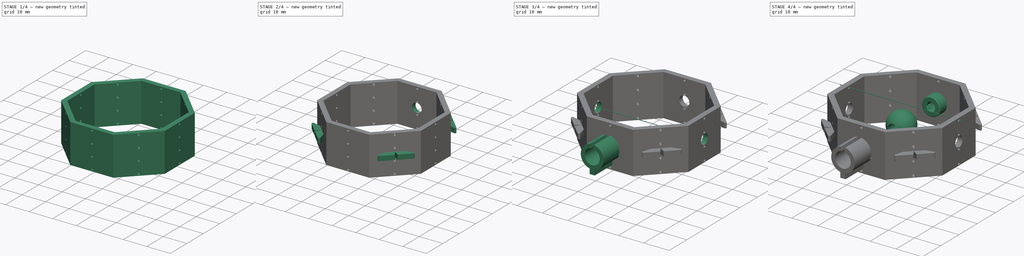
[diagram: build sequence overview — one tinted view per stage of 4, left to right]
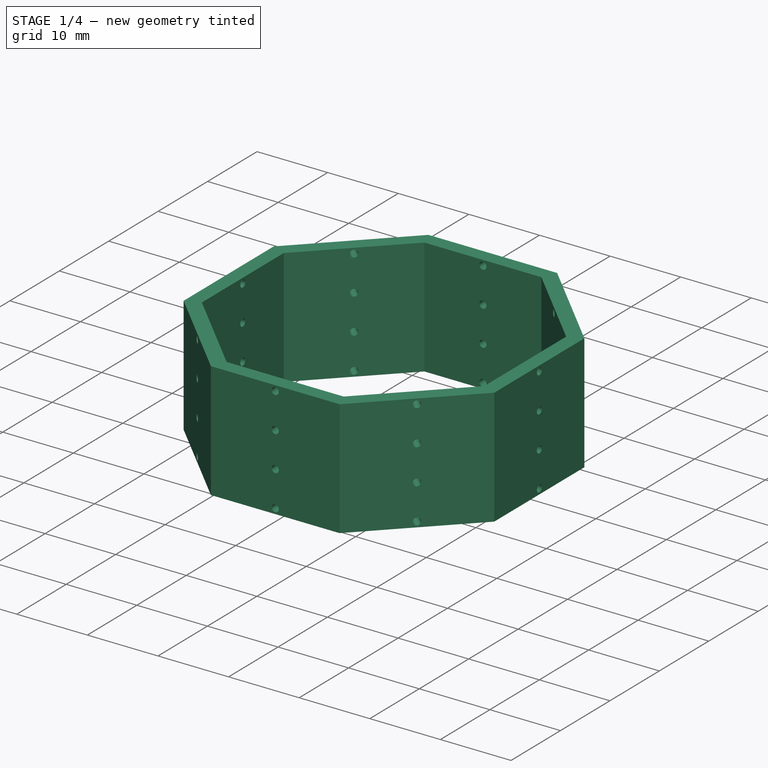
[diagram: stage 1 of 4 — iso view after this stage's code; geometry added in this stage tinted green]
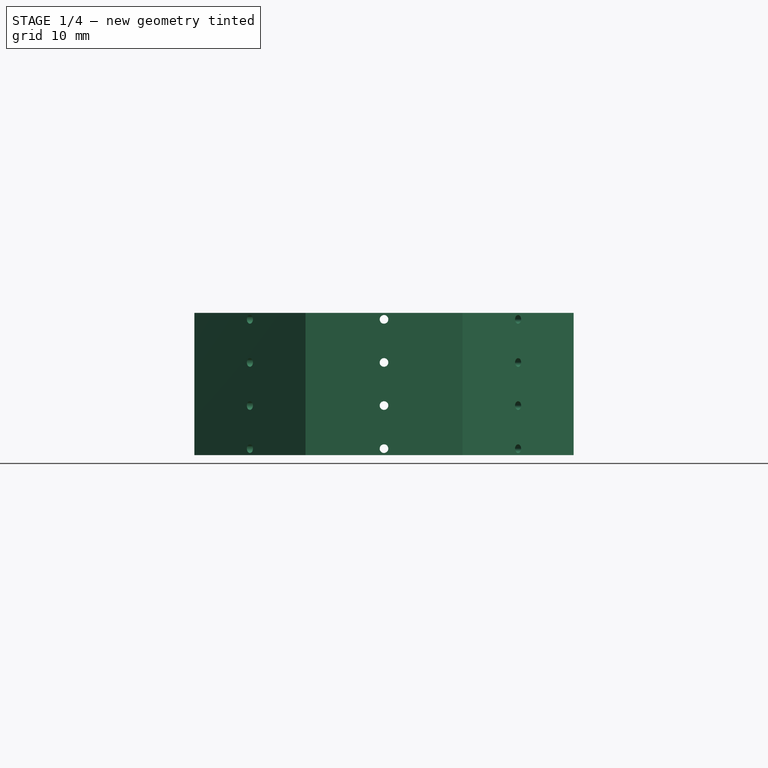
[diagram: stage 1 of 4 — front view after this stage's code; geometry added in this stage tinted green]
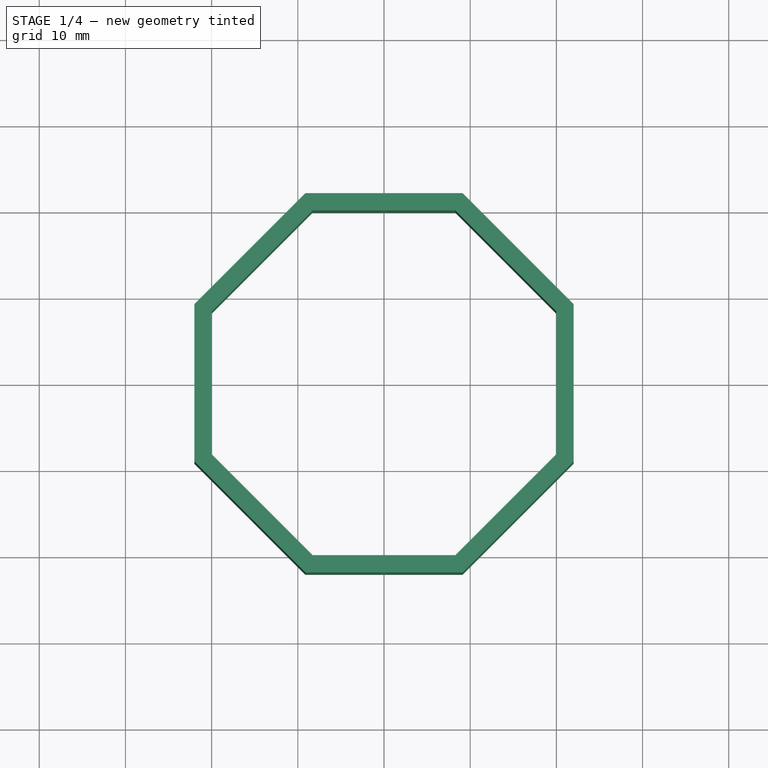
[diagram: stage 1 of 4 — top view after this stage's code; geometry added in this stage tinted green]
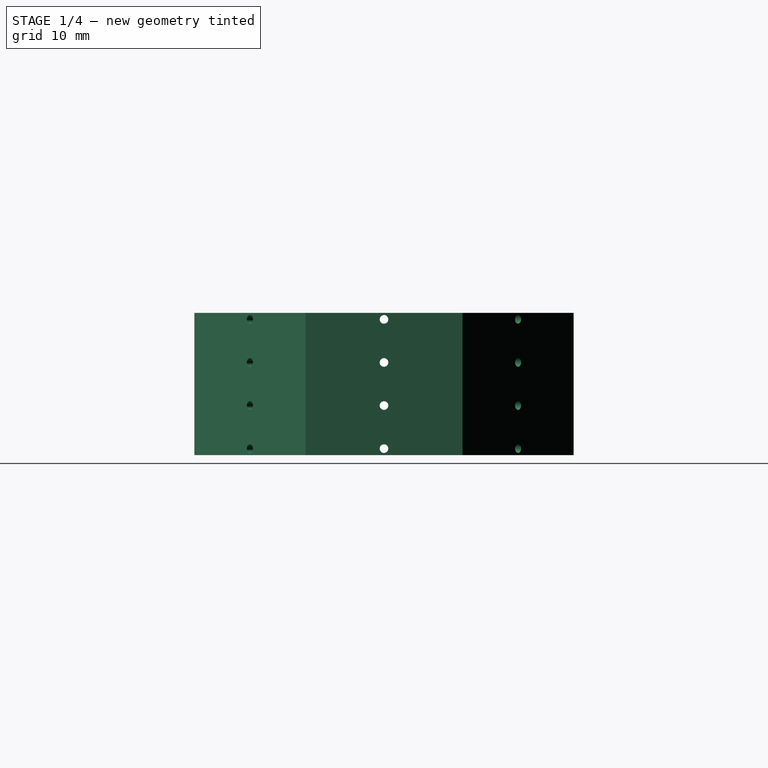
[diagram: stage 1 of 4 — right view after this stage's code; geometry added in this stage tinted green]
FCSTD DOCUMENT  (FreeCAD 0.19R24012 (Git))
Label: target_2axis
License: All rights reserved
LicenseURL: http://en.wikipedia.org/wiki/All_rights_reserved
objects: Sketcher::SketchObject×8, PartDesign::Pad×4, PartDesign::Body×4, PartDesign::Pocket×3, PartDesign::PolarPattern×3, Spreadsheet::Sheet×1, PartDesign::Revolution×1, Part::FeaturePython×1, PartDesign::FeatureBase×1
note: 33 computed .brp shape members not serialized (recipe doc carries the construction recipe); baked Part::Feature solids carry a one-line shape summary decoded from their .brp

FEATURE [Sketcher::SketchObject] Sketch
  FullyConstrained = true
  MapMode = 5
  Support = -> [XY_Plane]
  expr: Constraints[50] = <<p>>.mat_thick
  sketch-geometry (18):
    g0: LineSegment StartX=20 StartY=-8.28427 StartZ=0 EndX=20 EndY=8.28427 EndZ=0
    g1: LineSegment StartX=20 StartY=8.28427 StartZ=0 EndX=8.28427 EndY=20 EndZ=0
    g2: LineSegment StartX=8.28427 StartY=20 StartZ=0 EndX=-8.28427 EndY=20 EndZ=0
    g3: LineSegment StartX=-8.28427 StartY=20 StartZ=0 EndX=-20 EndY=8.28427 EndZ=0
    g4: LineSegment StartX=-20 StartY=8.28427 StartZ=0 EndX=-20 EndY=-8.28427 EndZ=0
    g5: LineSegment StartX=-20 StartY=-8.28427 StartZ=0 EndX=-8.28427 EndY=-20 EndZ=0
    g6: LineSegment StartX=-8.28427 StartY=-20 StartZ=0 EndX=8.28427 EndY=-20 EndZ=0
    g7: LineSegment StartX=8.28427 StartY=-20 StartZ=0 EndX=20 EndY=-8.28427 EndZ=0
    g8: Circle CenterX=0 CenterY=0 CenterZ=0 NormalX=0 NormalY=0 NormalZ=1 AngleXU=0 Radius=21.6478
    g9: LineSegment StartX=22 StartY=-9.1127 StartZ=0 EndX=22 EndY=9.1127 EndZ=0
    g10: LineSegment StartX=22 StartY=9.1127 StartZ=0 EndX=9.1127 EndY=22 EndZ=0
    g11: LineSegment StartX=9.1127 StartY=22 StartZ=0 EndX=-9.1127 EndY=22 EndZ=0
    g12: LineSegment StartX=-9.1127 StartY=22 StartZ=0 EndX=-22 EndY=9.1127 EndZ=0
    g13: LineSegment StartX=-22 StartY=9.1127 StartZ=0 EndX=-22 EndY=-9.1127 EndZ=0
    g14: LineSegment StartX=-22 StartY=-9.1127 StartZ=0 EndX=-9.1127 EndY=-22 EndZ=0
    g15: LineSegment StartX=-9.1127 StartY=-22 StartZ=0 EndX=9.1127 EndY=-22 EndZ=0
    g16: LineSegment StartX=9.1127 StartY=-22 StartZ=0 EndX=22 EndY=-9.1127 EndZ=0
    g17: Circle CenterX=0 CenterY=0 CenterZ=0 NormalX=0 NormalY=0 NormalZ=1 AngleXU=0 Radius=23.8126
  constraints (40):
    c: Coincident(g0,g1)
    c: Coincident(g1,g2)
    c: Coincident(g2,g3)
    c: Coincident(g3,g4)
    c: Coincident(g4,g5)
    c: Coincident(g5,g6)
    c: Coincident(g6,g7)
    c: Coincident(g7,g0)
    c: Equal(g0, g1-g7) x7
    c: PointOnObject(g0,g8)
    c: PointOnObject(g1,g8)
    c: PointOnObject(g2,g8)
    c: PointOnObject(g3,g8)
    c: PointOnObject(g4,g8)
    c: PointOnObject(g5,g8)
    c: PointOnObject(g6,g8)
    c: PointOnObject(g7,g8)
    c: Coincident(g8,g-1)
    c: Coincident(g9,g10)
    c: Coincident(g10,g11)
    c: Coincident(g11,g12)
    c: Coincident(g12,g13)
    c: Coincident(g13,g14)
    c: Coincident(g14,g15)
    c: Coincident(g15,g16)
    c: Coincident(g16,g9)
    c: Equal(g9, g10-g16) x7
    c: PointOnObject(g9,g17)
    c: PointOnObject(g10,g17)
    c: PointOnObject(g11,g17)
    c: PointOnObject(g12,g17)
    c: PointOnObject(g13,g17)
    c: PointOnObject(g14,g17)
    c: PointOnObject(g15,g17)
    c: PointOnObject(g16,g17)
    c: Coincident(g17,g-1)
    c: Vertical(g0)
    c: Vertical(g9)
    c: DistanceX(g0,g9) = 2
    c: DistanceX(g-1,g0) = 20
FEATURE [Spreadsheet::Sheet] Spreadsheet  label="p"
  cells = A2=Mat thickness; B2(mat_thick)=2
FEATURE [PartDesign::Pad] Pad
  Direction = (1,1,1)
  Length = 16.5
  Length2 = 100
  Midplane = true
  Profile = -> Sketch
  Type = 0
FEATURE [Sketcher::SketchObject] Sketch001
  FullyConstrained = true
  MapMode = 5
  Placement = pos=(0,0,0) rot=(1,0,0;1.5708rad)
  Support = -> [XZ_Plane]
  sketch-geometry (7):
    g0: Circle CenterX=0 CenterY=7.5 CenterZ=0 NormalX=0 NormalY=0 NormalZ=1 AngleXU=0 Radius=0.5
    g1: Circle CenterX=0 CenterY=2.5 CenterZ=0 NormalX=0 NormalY=0 NormalZ=1 AngleXU=0 Radius=0.5
    g2: Circle CenterX=0 CenterY=-2.5 CenterZ=0 NormalX=0 NormalY=0 NormalZ=1 AngleXU=0 Radius=0.5
    g3: Circle CenterX=0 CenterY=-7.5 CenterZ=0 NormalX=0 NormalY=0 NormalZ=1 AngleXU=0 Radius=0.5
    g4: LineSegment StartX=0 StartY=7.5 StartZ=0 EndX=0 EndY=2.5 EndZ=0
    g5: LineSegment StartX=0 StartY=2.5 StartZ=0 EndX=0 EndY=-2.5 EndZ=0
    g6: LineSegment StartX=0 StartY=-2.5 StartZ=0 EndX=0 EndY=-7.5 EndZ=0
  constraints (17):
    c: PointOnObject(g0,g-2)
    c: PointOnObject(g1,g-2)
    c: PointOnObject(g2,g-2)
    c: Equal(g0,g1)
    c: Equal(g1,g2)
    c: Equal(g2,g3)
    c: Diameter(g0) = 1
    c: Coincident(g4,g0)
    c: Coincident(g4,g1)
    c: Coincident(g5,g1)
    c: Coincident(g5,g2)
    c: Coincident(g6,g2)
    c: Coincident(g6,g3)
    c: Equal(g4,g5)
    c: Equal(g5,g6)
    c: DistanceY(g3,g0) = 15
    c: Symmetric(g0,g3,g-1)
FEATURE [PartDesign::Pocket] Pocket
  BaseFeature = -> Pad
  Length = 50
  Length2 = 100
  Midplane = true
  Profile = -> Sketch001
  Type = 0
FEATURE [PartDesign::PolarPattern] PolarPattern
  Angle = 360
  Axis = -> Sketch001 [V_Axis]
  BaseFeature = -> Pocket
  Occurrences = 8
  Originals = -> [Pocket]
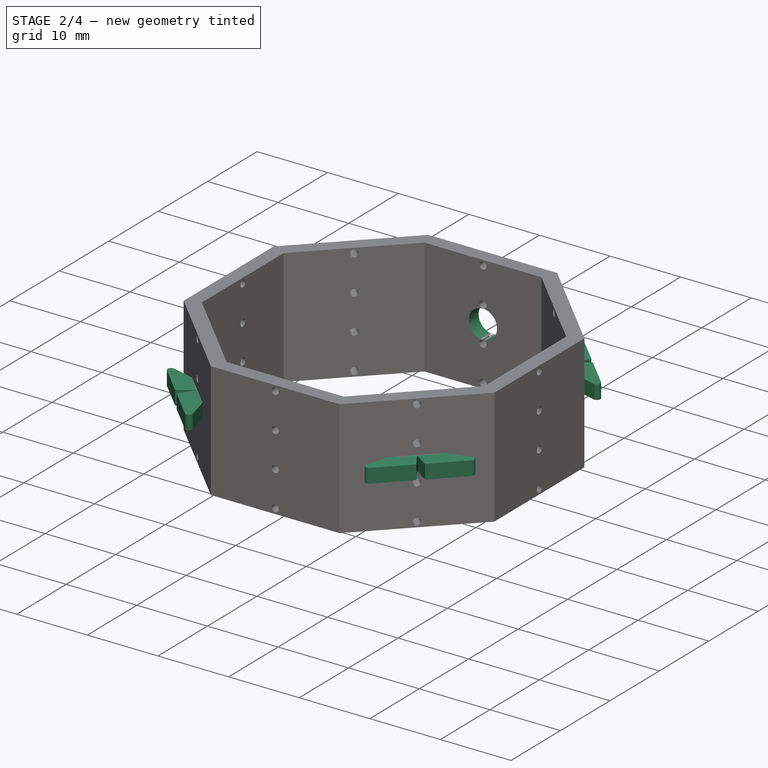
[diagram: stage 2 of 4 — iso view after this stage's code; geometry added in this stage tinted green]
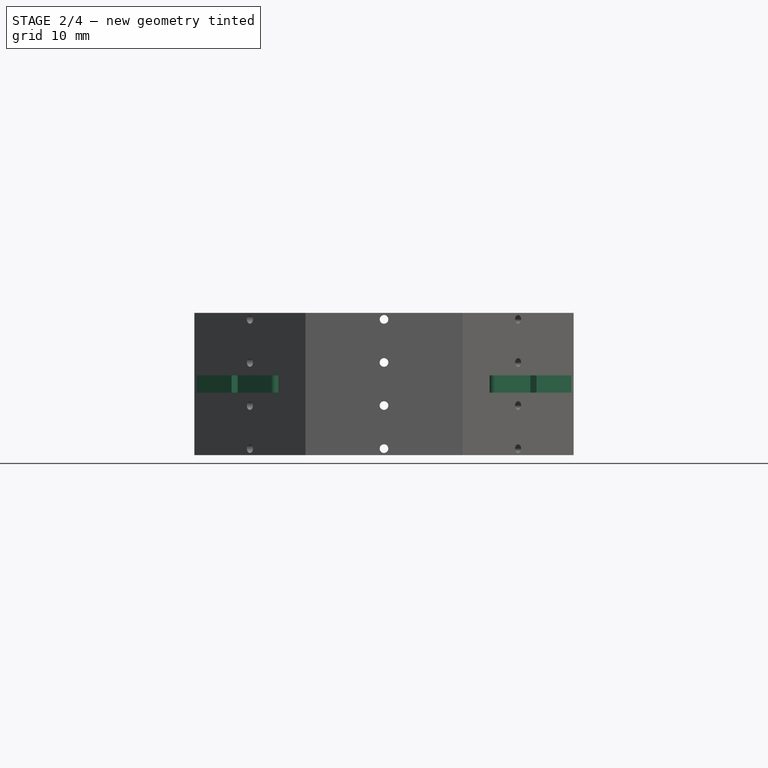
[diagram: stage 2 of 4 — front view after this stage's code; geometry added in this stage tinted green]
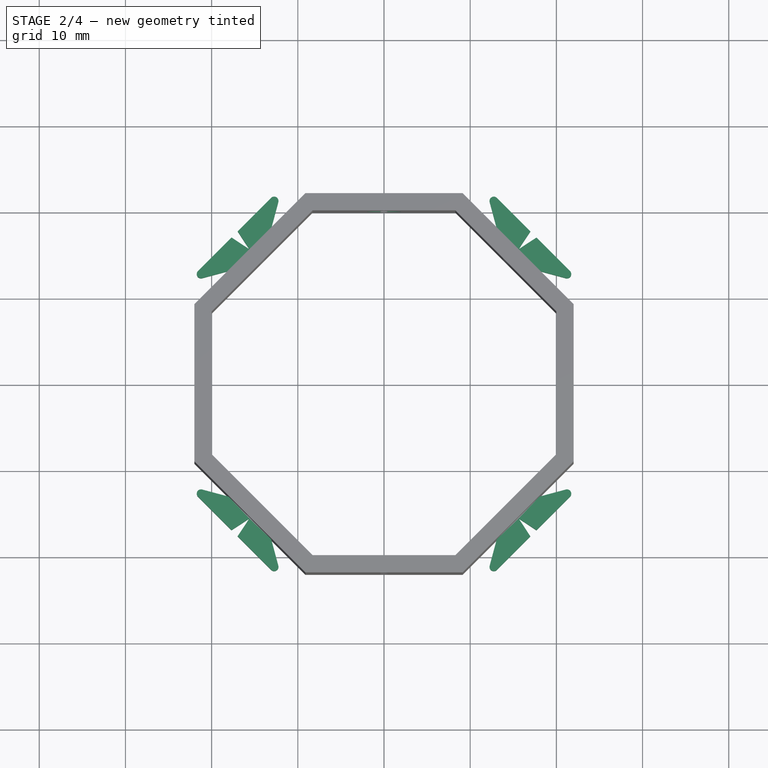
[diagram: stage 2 of 4 — top view after this stage's code; geometry added in this stage tinted green]
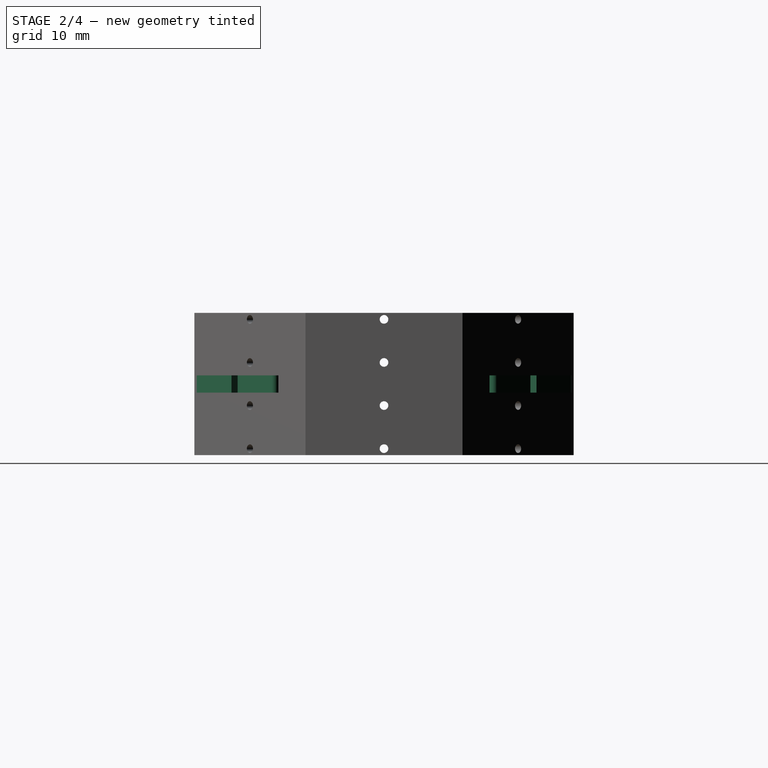
[diagram: stage 2 of 4 — right view after this stage's code; geometry added in this stage tinted green]
FEATURE [Sketcher::SketchObject] Sketch002
  ExternalGeometry = -> [PolarPattern]
  FullyConstrained = false
  MapMode = 5
  Support = -> [XY_Plane]
  sketch-geometry (10):
    g0: LineSegment StartX=-21.5814 StartY=13.0961 StartZ=0 EndX=-17.6923 EndY=16.9852 EndZ=0
    g1: LineSegment StartX=-16.9852 StartY=17.6923 StartZ=0 EndX=-13.0961 EndY=21.5814 EndZ=0
    g2: LineSegment StartX=-18.0312 StartY=13.0815 StartZ=0 EndX=-21.0984 EndY=12.2596 EndZ=0
    g3: LineSegment StartX=-17.6923 StartY=16.9852 StartZ=0 EndX=-15.6271 EndY=15.6271 EndZ=0
    g4: LineSegment StartX=-15.6271 StartY=15.6271 StartZ=0 EndX=-16.9852 EndY=17.6923 EndZ=0
    g5: LineSegment StartX=-15.5563 StartY=15.5563 StartZ=0 EndX=-23.3861 EndY=23.3861 EndZ=0
    g6: ArcOfCircle CenterX=-21.2279 CenterY=12.7426 CenterZ=0 NormalX=0 NormalY=0 NormalZ=1 AngleXU=0 Radius=0.5 StartAngle=2.35619 EndAngle=4.97419
    g7: ArcOfCircle CenterX=-12.7426 CenterY=21.2279 CenterZ=0 NormalX=0 NormalY=0 NormalZ=1 AngleXU=0 Radius=0.5 StartAngle=6.02139 EndAngle=8.63938
    g8: LineSegment StartX=-12.2596 StartY=21.0984 StartZ=0 EndX=-13.0815 EndY=18.0312 EndZ=0
    g9: LineSegment StartX=-13.0815 StartY=18.0312 StartZ=0 EndX=-18.0312 EndY=13.0815 EndZ=0
  constraints (24):
    c: Coincident(g3,g0)
    c: Coincident(g4,g1)
    c: Symmetric(g0,g1,g5)
    c: Parallel(g0,g1)
    c: Distance(g0,g1) = 1
    c: Coincident(g3,g4)
    c: PointOnObject(g3,g5)
    c: Distance(g3,g5) = 0.1
    c: Symmetric(g6,g7,g5)
    c: Tangent(g0,g6) = 1.5708
    c: Tangent(g2,g6) = 1.5708
    c: Tangent(g1,g7) = 1.5708
    c: Distance(g6,g7) = 12
    c: Diameter(g6) = 1
    c: Coincident(g9,g8)
    c: Coincident(g9,g2)
    c: PointOnObject(g5,g9)
    c: Tangent(g8,g7) = 1.5708
    c: Symmetric(g2,g8,g5)
    c: Equal(g6,g7)
    c: PointOnObject(g2,g-5)
    c: Symmetric(g-5,g-5,g5)
    c: Angle(g8,g-5) = 2.61799
    c: Distance(g2,g8) = 7
FEATURE [PartDesign::Pad] Pad001
  BaseFeature = -> PolarPattern
  Direction = (1,1,1)
  Length = 2
  Length2 = 100
  Midplane = true
  Profile = -> Sketch002
  Type = 0
FEATURE [PartDesign::PolarPattern] PolarPattern001
  Angle = 360
  Axis = -> Sketch002 [N_Axis]
  BaseFeature = -> Pad001
  Occurrences = 4
  Originals = -> [Pad001]
FEATURE [Sketcher::SketchObject] Sketch003
  FullyConstrained = true
  MapMode = 5
  Placement = pos=(0,0,0) rot=(1,0,0;1.5708rad)
  Support = -> [XZ_Plane]
  sketch-geometry (1):
    g0: Circle CenterX=0 CenterY=0 CenterZ=0 NormalX=0 NormalY=0 NormalZ=1 AngleXU=0 Radius=2
  constraints (2):
    c: Coincident(g0,g-1)
    c: Diameter(g0) = 4
FEATURE [PartDesign::Pocket] Pocket001
  BaseFeature = -> PolarPattern001
  Length = 30
  Length2 = 100
  Profile = -> Sketch003
  Type = 0
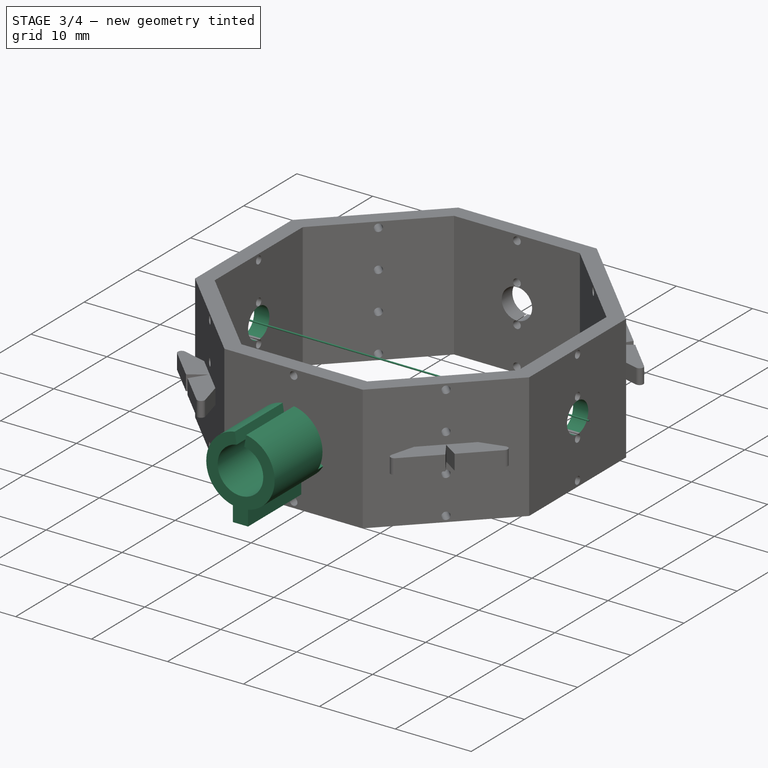
[diagram: stage 3 of 4 — iso view after this stage's code; geometry added in this stage tinted green]
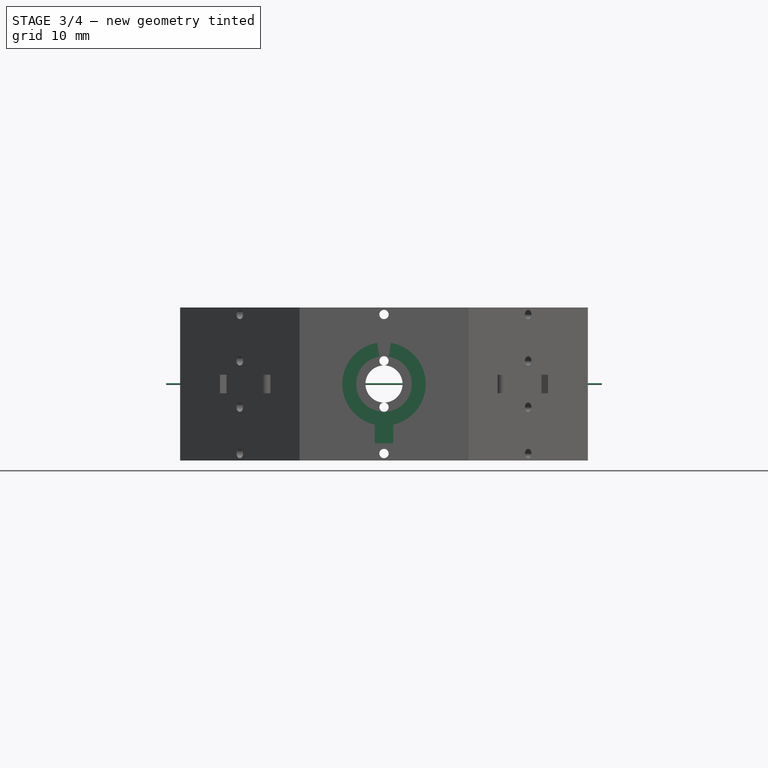
[diagram: stage 3 of 4 — front view after this stage's code; geometry added in this stage tinted green]
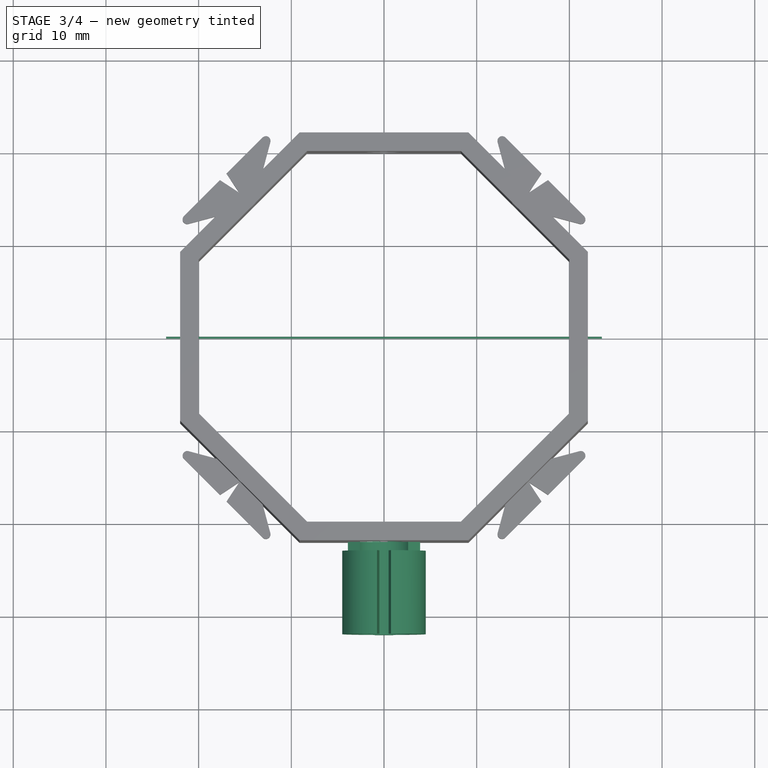
[diagram: stage 3 of 4 — top view after this stage's code; geometry added in this stage tinted green]
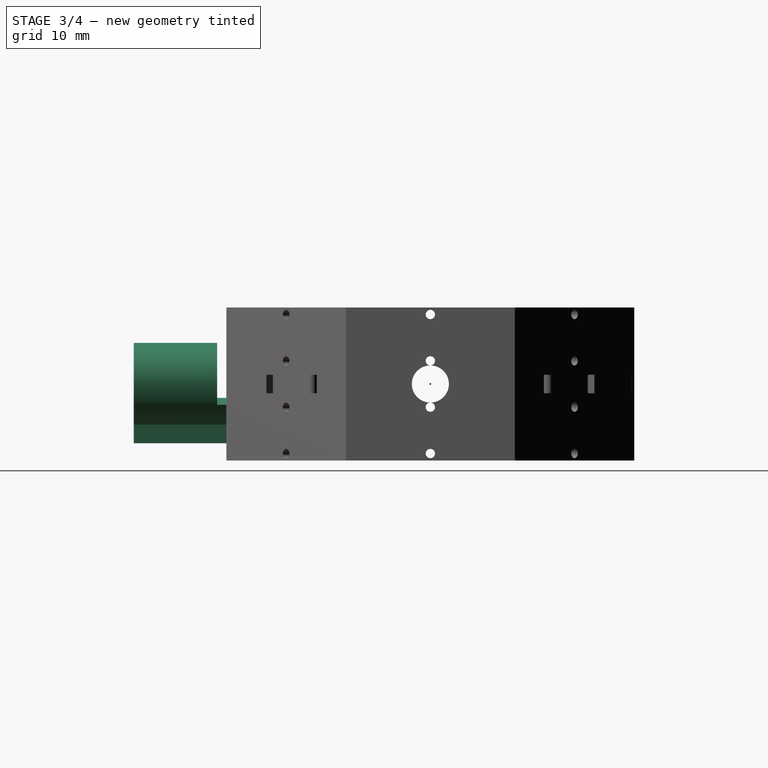
[diagram: stage 3 of 4 — right view after this stage's code; geometry added in this stage tinted green]
FEATURE [PartDesign::PolarPattern] PolarPattern002
  Angle = 360
  Axis = -> Z_Axis
  BaseFeature = -> Pocket001
  Occurrences = 4
  Originals = -> [Pocket001]
FEATURE [Sketcher::SketchObject] Sketch005
  FullyConstrained = true
  MapMode = 5
  Placement = pos=(0,0,0) rot=(0.57735,0.57735,0.57735;2.0944rad)
  Support = -> [YZ_Plane002]
  sketch-geometry (1):
    g0: Circle CenterX=0 CenterY=0 CenterZ=0 NormalX=0 NormalY=0 NormalZ=1 AngleXU=0 Radius=0.1
  constraints (2):
    c: Coincident(g0,g-1)
    c: Diameter(g0) = 0.2
FEATURE [PartDesign::Pad] Pad002
  Direction = (1,1,1)
  Length = 47
  Length2 = 100
  Midplane = true
  Placement = pos=(0,0,0) rot=(0.57735,0.57735,0.57735;2.0944rad)
  Profile = -> Sketch005
  Type = 0
FEATURE [PartDesign::Body] Body003  label="bd_thread2"
  Group = -> [Clone]
  Origin = -> Origin003
  Placement = pos=(0,0,-15) rot=(0,0,1;1.5708rad)
  Tip = -> Clone
FEATURE [Sketcher::SketchObject] Sketch006
  FullyConstrained = true
  MapMode = 5
  Placement = pos=(-4.3e-15,-22,0) rot=(1,0,0;1.5708rad)
  Support = -> [PolarPattern002]
  expr: Constraints[10] = <<p>>.mat_thick
  expr: Constraints[9] = <<p>>.mat_thick
  sketch-geometry (8):
    g0: ArcOfCircle CenterX=0 CenterY=0 CenterZ=0 NormalX=0 NormalY=0 NormalZ=1 AngleXU=0 Radius=3 StartAngle=1.73824 EndAngle=7.68653
    g1: ArcOfCircle CenterX=0 CenterY=0 CenterZ=0 NormalX=0 NormalY=0 NormalZ=1 AngleXU=0 Radius=4.5 StartAngle=4.93648 EndAngle=7.68653
    g2: LineSegment StartX=-1 StartY=-4.38748 StartZ=0 EndX=-1 EndY=-6.38748 EndZ=0
    g3: LineSegment StartX=-1 StartY=-6.38748 StartZ=0 EndX=1 EndY=-6.38748 EndZ=0
    g4: LineSegment StartX=1 StartY=-6.38748 StartZ=0 EndX=1 EndY=-4.38748 EndZ=0
    g5: LineSegment StartX=-0.5 StartY=2.95804 StartZ=0 EndX=-0.75 EndY=4.43706 EndZ=0
    g6: LineSegment StartX=0.5 StartY=2.95804 StartZ=0 EndX=0.75 EndY=4.43706 EndZ=0
    g7: ArcOfCircle CenterX=0 CenterY=0 CenterZ=0 NormalX=0 NormalY=0 NormalZ=1 AngleXU=0 Radius=4.5 StartAngle=1.73824 EndAngle=4.4883
  constraints (23):
    c: Coincident(g0,g-1)
    c: Coincident(g1,g0)
    c: Diameter(g0) = 6
    c: Diameter(g1) = 9
    c: Vertical(g2)
    c: Coincident(g3,g2)
    c: Coincident(g4,g3)
    c: Vertical(g4)
    c: Symmetric(g2,g3,g-2)
    c: DistanceX(g3,g3) = 2
    c: DistanceY(g4,g4) = 2
    c: Coincident(g1,g4)
    c: Coincident(g7,g2)
    c: PointOnObject(g0,g5)
    c: PointOnObject(g0,g6)
    c: Symmetric(g5,g6,g-2)
    c: DistanceX(g5,g6) = 1
    c: Coincident(g0,g5)
    c: Coincident(g0,g6)
    c: Equal(g1,g7)
    c: PointOnObject(g1,g6)
    c: Coincident(g7,g5)
    c: Coincident(g1,g7)
FEATURE [PartDesign::Pad] Pad003
  BaseFeature = -> PolarPattern002
  Direction = (1,1,1)
  Length = 10
  Length2 = 100
  Profile = -> Sketch006
  Type = 0
FEATURE [Sketcher::SketchObject] Sketch007
  FullyConstrained = true
  MapMode = 5
  Placement = pos=(-4.3e-15,-22,0) rot=(1,0,0;1.5708rad)
  Support = -> [Pad003]
  sketch-geometry (3):
    g0: ArcOfCircle CenterX=0 CenterY=0 CenterZ=0 NormalX=0 NormalY=0 NormalZ=1 AngleXU=0 Radius=4.55 StartAngle=5.75959 EndAngle=9.94838
    g1: LineSegment StartX=-3.94042 StartY=-2.275 StartZ=0 EndX=0 EndY=0 EndZ=0
    g2: LineSegment StartX=0 StartY=0 StartZ=0 EndX=3.94042 EndY=-2.275 EndZ=0
  constraints (8):
    c: Coincident(g0,g-1)
    c: Coincident(g1,g0)
    c: Coincident(g1,g0)
    c: Coincident(g2,g0)
    c: Coincident(g2,g0)
    c: Symmetric(g0,g0,g-2)
    c: Angle(g1,g2) = 2.0944
    c: Diameter(g0) = 9.1
FEATURE [PartDesign::Pocket] Pocket002
  BaseFeature = -> Pad003
  Length = 1
  Length2 = 100
  Profile = -> Sketch007
  Reversed = true
  Type = 0
FEATURE [PartDesign::Body] Body  label="bd_frame"
  Group = -> [Sketch,Pad,Sketch001,Pocket,PolarPattern,Sketch002,Pad001,PolarPattern001,Sketch003,Pocket001,PolarPattern002,Sketch006,Pad003,Sketch007,Pocket002]
  Origin = -> Origin
  Tip = -> Pocket002
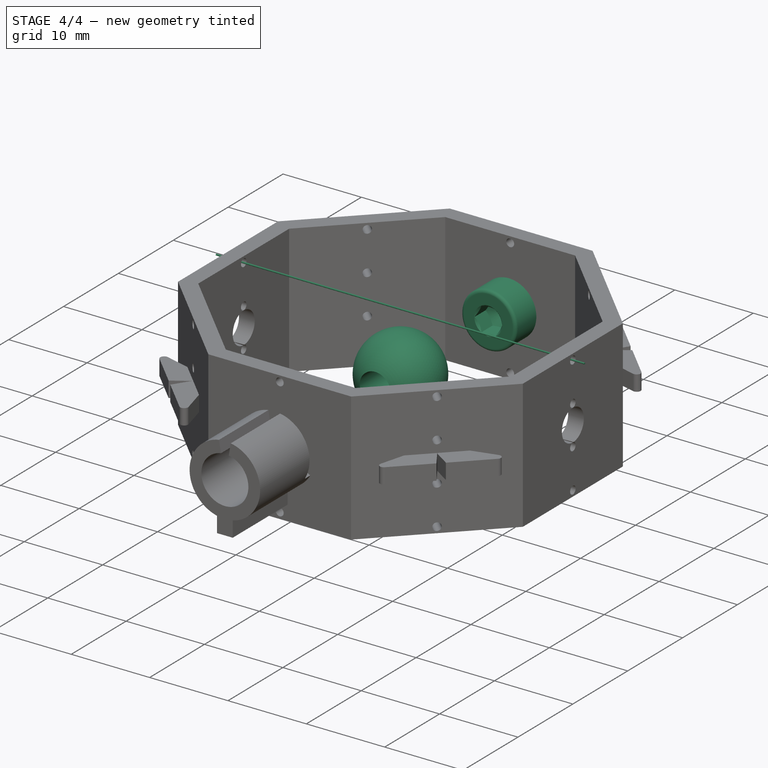
[diagram: stage 4 of 4 — iso view after this stage's code; geometry added in this stage tinted green]
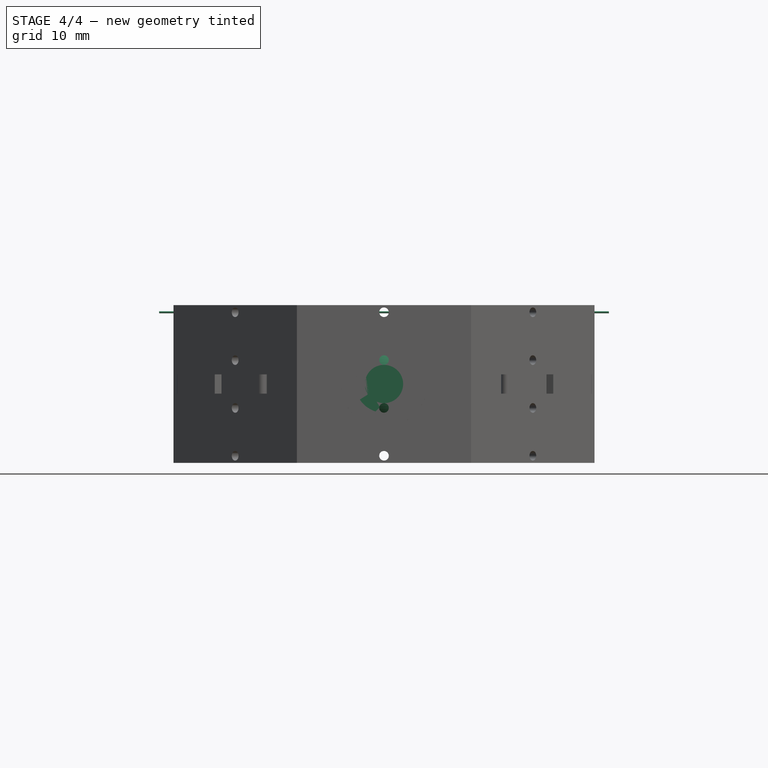
[diagram: stage 4 of 4 — front view after this stage's code; geometry added in this stage tinted green]
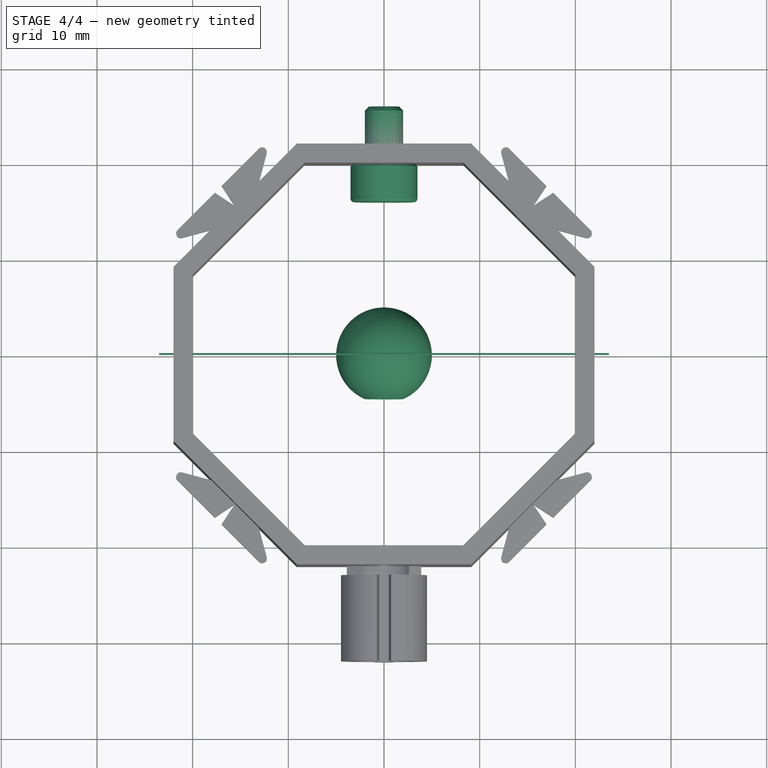
[diagram: stage 4 of 4 — top view after this stage's code; geometry added in this stage tinted green]
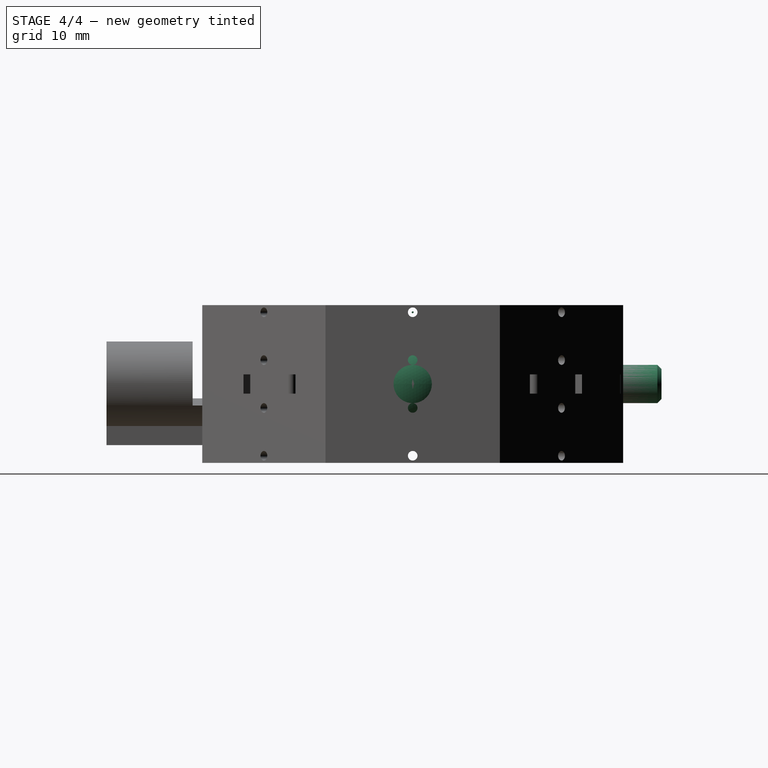
[diagram: stage 4 of 4 — right view after this stage's code; geometry added in this stage tinted green]
FEATURE [Sketcher::SketchObject] Sketch004
  FullyConstrained = true
  MapMode = 5
  Support = -> [XY_Plane001]
  sketch-geometry (4):
    g0: ArcOfCircle CenterX=0 CenterY=0 CenterZ=0 NormalX=0 NormalY=0 NormalZ=1 AngleXU=0 Radius=5 StartAngle=5.12391 EndAngle=7.85398
    g1: LineSegment StartX=0 StartY=0 StartZ=0 EndX=2 EndY=0 EndZ=0
    g2: LineSegment StartX=2 StartY=0 StartZ=0 EndX=2 EndY=-4.58258 EndZ=0
    g3: LineSegment StartX=1.5e-15 StartY=5 StartZ=0 EndX=0 EndY=0 EndZ=0
  constraints (11):
    c: Coincident(g0,g-1)
    c: PointOnObject(g0,g-2)
    c: Diameter(g0) = 10
    c: Coincident(g1,g0)
    c: PointOnObject(g1,g-1)
    c: Coincident(g2,g1)
    c: Vertical(g2)
    c: DistanceX(g1,g1) = 2
    c: Coincident(g0,g2)
    c: Coincident(g3,g0)
    c: Coincident(g3,g0)
FEATURE [PartDesign::Revolution] Revolution
  Angle = 360
  Axis = (0,1,0)
  Base = (0,0,0)
  Profile = -> Sketch004
  ReferenceAxis = -> Sketch004 [V_Axis]
  Reversed = true
FEATURE [PartDesign::Body] Body001  label="bd_ball"
  Group = -> [Sketch004,Revolution]
  Origin = -> Origin001
  Placement = pos=(0,26.6,0) rot=(0,0,1;0rad)
  Tip = -> Revolution
FEATURE [Part::FeaturePython] Screw  label="M4x6-Screw"  # Fasteners workbench fastener (typed FeaturePython)
  Placement = pos=(0,20,4.4e-15) rot=(1,0,0;1.5708rad)
  diameter = 5
  invert = false
  length = 0
  matchOuter = false
  offset = 0
  thread = false
  type = 15
FEATURE [PartDesign::Body] Body002  label="bd_thread"
  Group = -> [Sketch005,Pad002]
  Origin = -> Origin002
  Placement = pos=(0,0,7.5) rot=(0,0,1;0rad)
  Tip = -> Pad002
FEATURE [PartDesign::FeatureBase] Clone
  BaseFeature = -> Body002
  Placement = pos=(0,0,7.5) rot=(0,0,1;0rad)
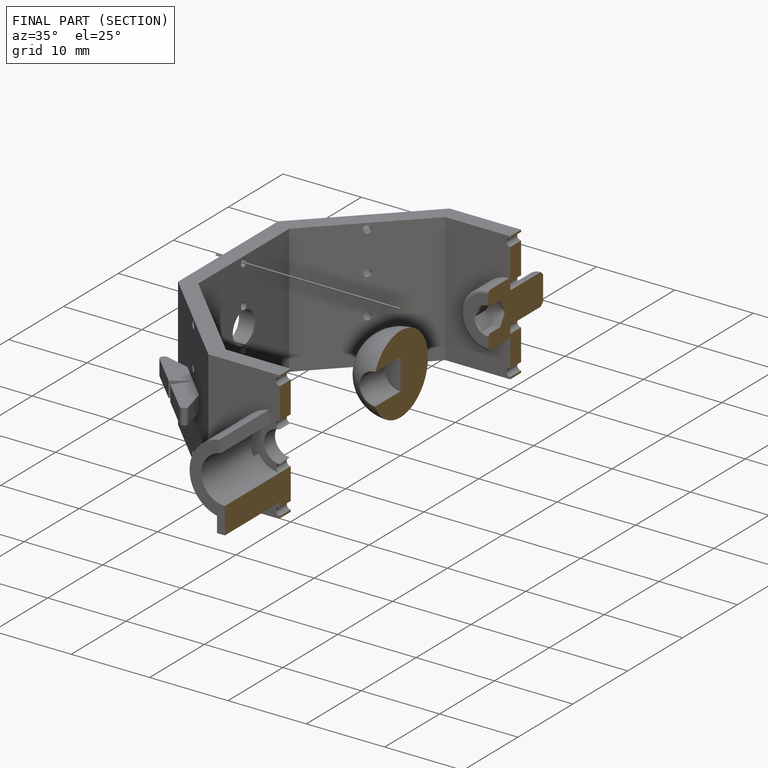
[diagram: finished part — half-section view (interior)]
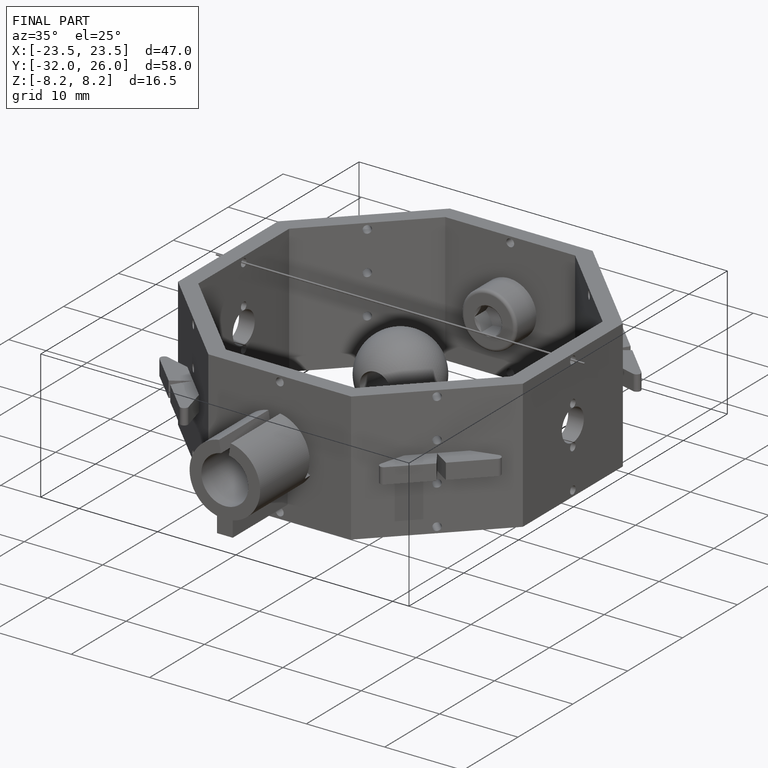
[diagram: finished part — iso view with bounding-box wireframe]
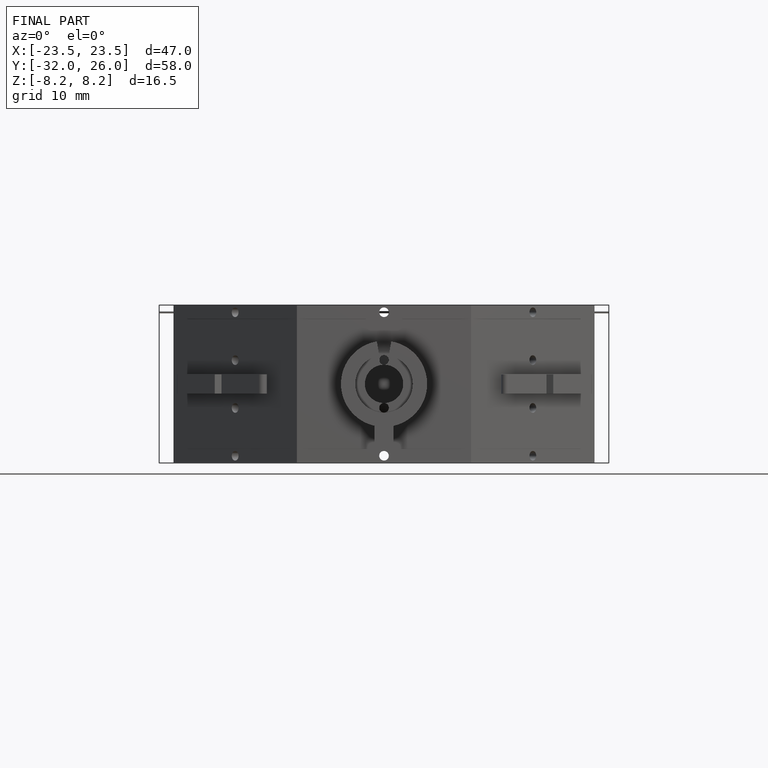
[diagram: finished part — front view with bounding-box wireframe]
